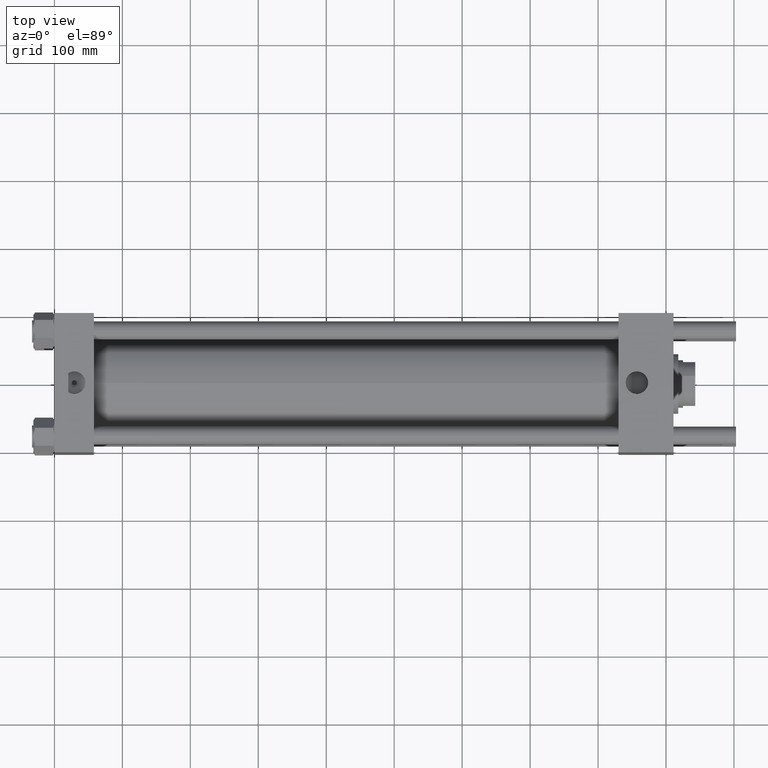
[diagram: clean part render]
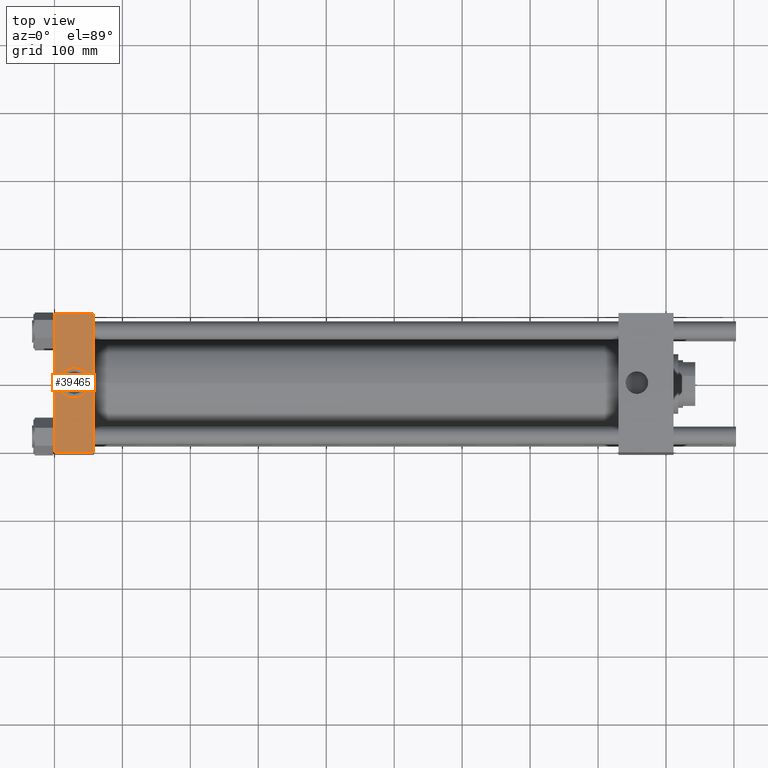
[diagram: same view with one face highlighted and labeled with its STEP entity id]
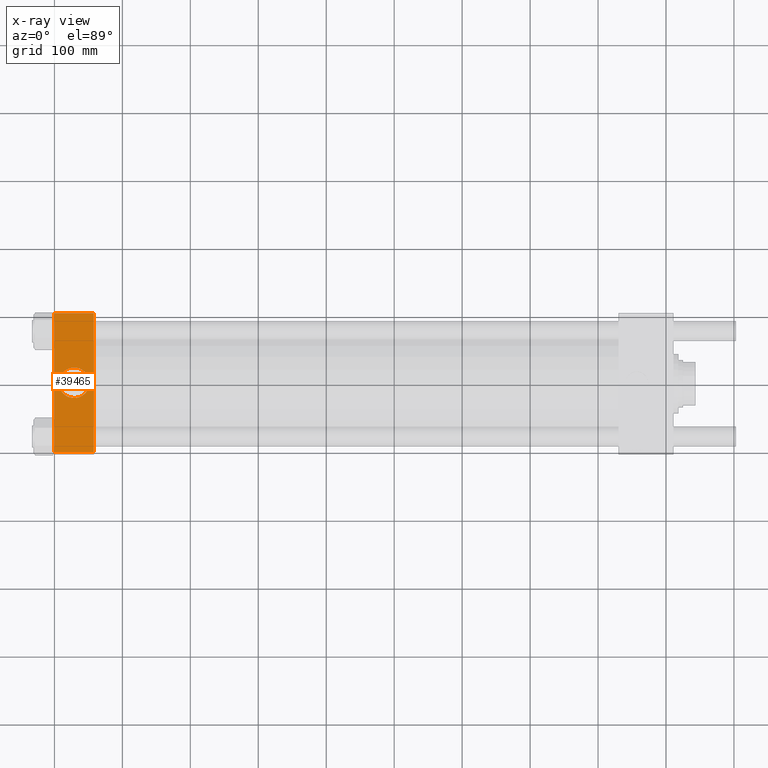
[diagram: x-ray of the same camera — body ghosted, the highlighted face saturated]
A machine part, top view. The second image highlights one B-rep face of the part: STEP entity #39465.
The next image is the same camera in x-ray: the body ghosted, the highlighted face saturated — about 0% of this face is hidden behind the body in this view.
In plain terms, the highlighted planar face has unit normal (0, 0, -1).
Its self-contained STEP definition (entity closure, byte-faithful):
#484 = CARTESIAN_POINT ( 'NONE',  ( 29.00000000000000000, -8.673617379884038628E-15, 102.5000000000000142 ) ) ;
#1293 = CIRCLE ( 'NONE', #42035, 22.50000000000000355 ) ;
#2163 = ORIENTED_EDGE ( 'NONE', *, *, #48378, .T. ) ;
#2237 = CARTESIAN_POINT ( 'NONE',  ( 58.00000000000000000, 102.5000000000000284, 102.5000000000000284 ) ) ;
#3266 = CARTESIAN_POINT ( 'NONE',  ( 58.00000000000000000, 102.5000000000000284, 102.5000000000000284 ) ) ;
#3970 = DIRECTION ( 'NONE',  ( 1.000000000000000000, 0.000000000000000000, 0.000000000000000000 ) ) ;
#5208 = CARTESIAN_POINT ( 'NONE',  ( 29.00000000000000000, -8.673617379884038628E-15, 102.5000000000000142 ) ) ;
#6591 = DIRECTION ( 'NONE',  ( 0.000000000000000000, -1.000000000000000000, -1.353930517835556973E-16 ) ) ;
#6631 = EDGE_CURVE ( 'NONE', #16583, #28633, #1293, .T. ) ;
#9999 = CARTESIAN_POINT ( 'NONE',  ( 0.000000000000000000, 102.0000000000000142, 102.5000000000000284 ) ) ;
#10070 = EDGE_LOOP ( 'NONE', ( #26053, #2163, #26652, #43812 ) ) ;
#11415 = FACE_OUTER_BOUND ( 'NONE', #10070, .T. ) ;
#12841 = EDGE_CURVE ( 'NONE', #30851, #50219, #28933, .T. ) ;
#13154 = EDGE_LOOP ( 'NONE', ( #40357, #49844 ) ) ;
#13262 = DIRECTION ( 'NONE',  ( 0.000000000000000000, 0.000000000000000000, 1.000000000000000000 ) ) ;
#14629 = CARTESIAN_POINT ( 'NONE',  ( 0.000000000000000000, 102.5000000000000284, 102.5000000000000284 ) ) ;
#15590 = LINE ( 'NONE', #20225, #32499 ) ;
#16583 = VERTEX_POINT ( 'NONE', #31370 ) ;
#17451 = CARTESIAN_POINT ( 'NONE',  ( 58.00000000000000000, 102.0000000000000142, 102.5000000000000284 ) ) ;
#18859 = DIRECTION ( 'NONE',  ( 0.000000000000000000, 0.000000000000000000, 1.000000000000000000 ) ) ;
#19471 = EDGE_CURVE ( 'NONE', #28633, #16583, #27469, .T. ) ;
#20225 = CARTESIAN_POINT ( 'NONE',  ( 58.00000000000000000, -101.9999999999999716, 102.5000000000000000 ) ) ;
#21979 = DIRECTION ( 'NONE',  ( -1.000000000000000000, 0.000000000000000000, 0.000000000000000000 ) ) ;
#23350 = CARTESIAN_POINT ( 'NONE',  ( 6.499999999999995559, -5.918162081802493061E-15, 102.5000000000000142 ) ) ;
#24755 = FACE_BOUND ( 'NONE', #13154, .T. ) ;
#25144 = DIRECTION ( 'NONE',  ( 1.000000000000000000, 0.000000000000000000, 0.000000000000000000 ) ) ;
#26053 = ORIENTED_EDGE ( 'NONE', *, *, #38811, .T. ) ;
#26547 = AXIS2_PLACEMENT_3D ( 'NONE', #5208, #18859, #45241 ) ;
#26652 = ORIENTED_EDGE ( 'NONE', *, *, #12841, .F. ) ;
#27469 = CIRCLE ( 'NONE', #26547, 22.50000000000000355 ) ;
#28341 = VECTOR ( 'NONE', #6591, 1000.000000000000000 ) ;
#28633 = VERTEX_POINT ( 'NONE', #23350 ) ;
#28933 = LINE ( 'NONE', #2237, #28341 ) ;
#29690 = PLANE ( 'NONE',  #34984 ) ;
#29832 = VECTOR ( 'NONE', #21979, 1000.000000000000000 ) ;
#30851 = VERTEX_POINT ( 'NONE', #17451 ) ;
#31370 = CARTESIAN_POINT ( 'NONE',  ( 51.50000000000000711, -8.673617379884038628E-15, 102.5000000000000142 ) ) ;
#32328 = DIRECTION ( 'NONE',  ( 0.000000000000000000, -1.000000000000000000, -1.353930517835556973E-16 ) ) ;
#32499 = VECTOR ( 'NONE', #25144, 1000.000000000000000 ) ;
#34984 = AXIS2_PLACEMENT_3D ( 'NONE', #3266, #38677, #55248 ) ;
#35770 = CARTESIAN_POINT ( 'NONE',  ( 0.000000000000000000, -101.9999999999999147, 102.5000000000000000 ) ) ;
#38677 = DIRECTION ( 'NONE',  ( 0.000000000000000000, 1.353930517835556973E-16, -1.000000000000000000 ) ) ;
#38811 = EDGE_CURVE ( 'NONE', #42765, #47174, #45655, .T. ) ;
#39465 = ADVANCED_FACE ( 'NONE', ( #24755, #11415 ), #29690, .F. ) ;
#40357 = ORIENTED_EDGE ( 'NONE', *, *, #6631, .F. ) ;
#41934 = CARTESIAN_POINT ( 'NONE',  ( 0.000000000000000000, 102.0000000000000142, 102.5000000000000284 ) ) ;
#42035 = AXIS2_PLACEMENT_3D ( 'NONE', #484, #13262, #3970 ) ;
#42765 = VERTEX_POINT ( 'NONE', #41934 ) ;
#43812 = ORIENTED_EDGE ( 'NONE', *, *, #57138, .T. ) ;
#45241 = DIRECTION ( 'NONE',  ( 1.000000000000000000, 0.000000000000000000, 0.000000000000000000 ) ) ;
#45655 = LINE ( 'NONE', #14629, #47932 ) ;
#47174 = VERTEX_POINT ( 'NONE', #35770 ) ;
#47932 = VECTOR ( 'NONE', #32328, 1000.000000000000000 ) ;
#48378 = EDGE_CURVE ( 'NONE', #47174, #50219, #15590, .T. ) ;
#49844 = ORIENTED_EDGE ( 'NONE', *, *, #19471, .F. ) ;
#50219 = VERTEX_POINT ( 'NONE', #51972 ) ;
#51972 = CARTESIAN_POINT ( 'NONE',  ( 58.00000000000000000, -101.9999999999999147, 102.5000000000000000 ) ) ;
#53322 = LINE ( 'NONE', #9999, #29832 ) ;
#55248 = DIRECTION ( 'NONE',  ( 0.000000000000000000, 1.000000000000000000, 1.353930517835556973E-16 ) ) ;
#57138 = EDGE_CURVE ( 'NONE', #30851, #42765, #53322, .T. ) ;